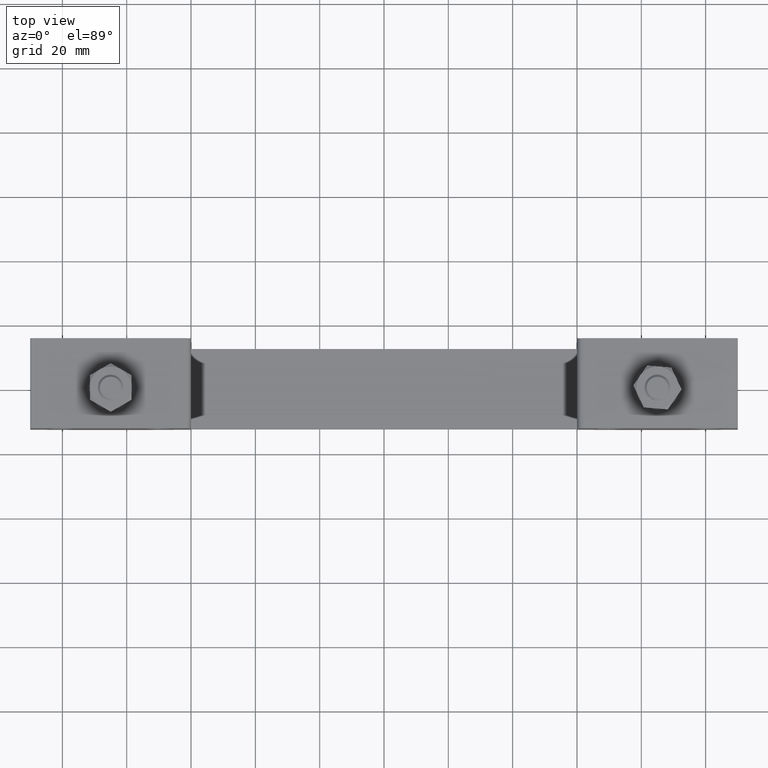
[diagram: clean part render]
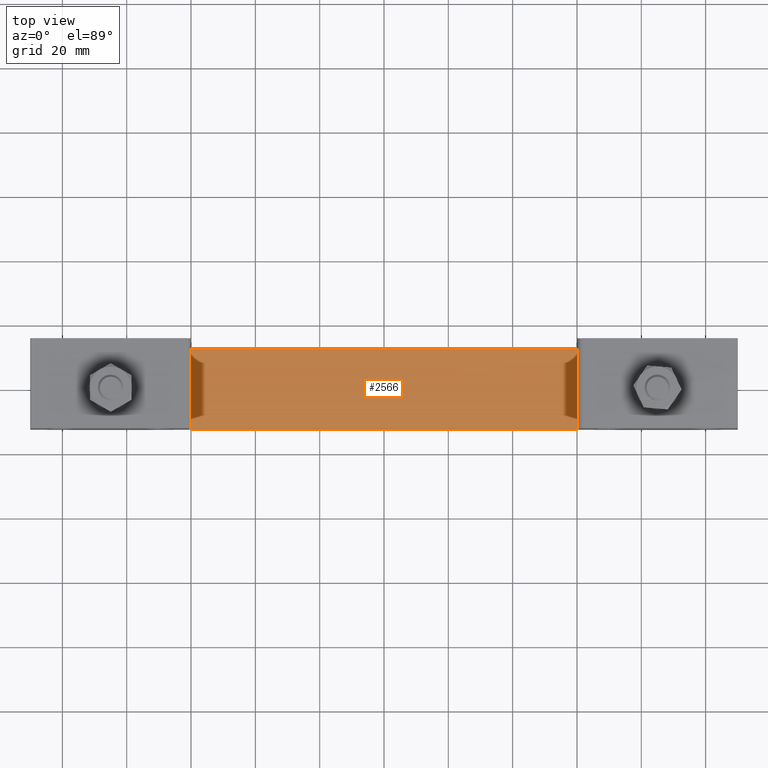
[diagram: same view with one face highlighted and labeled with its STEP entity id]
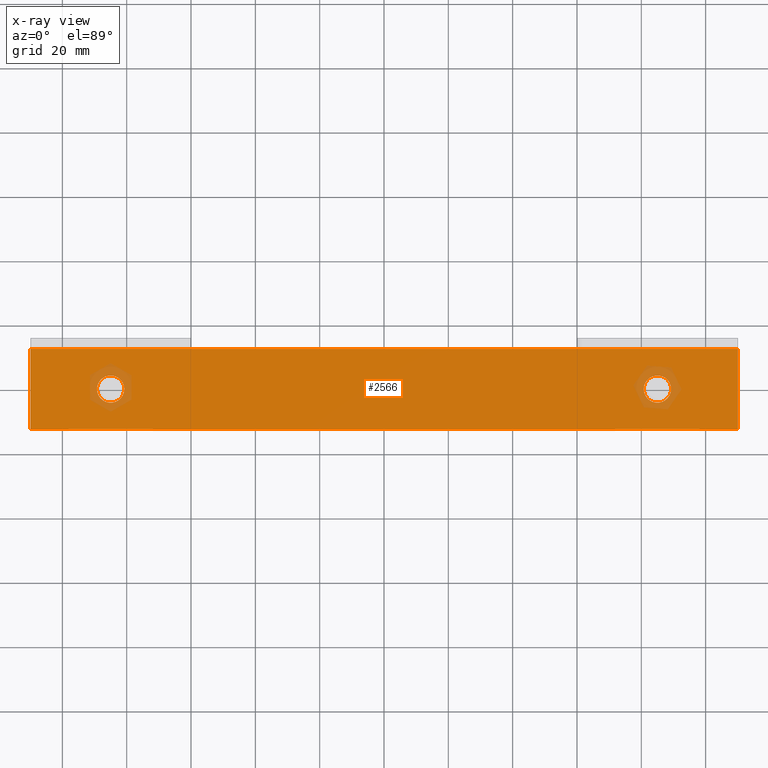
[diagram: x-ray of the same camera — body ghosted, the highlighted face saturated]
A machine part, top view. The second image highlights one B-rep face of the part: STEP entity #2566.
The next image is the same camera in x-ray: the body ghosted, the highlighted face saturated — about 3% of this face is hidden behind the body in this view.
In plain terms, the highlighted planar face has unit normal (0, 0, 1).
Its self-contained STEP definition (entity closure, byte-faithful):
#276 = CARTESIAN_POINT ( 'NONE',  ( -110.0000000000000000, 12.50000000000000000, 2.500000000000000000 ) ) ;
#447 = ORIENTED_EDGE ( 'NONE', *, *, #5876, .T. ) ;
#758 = VERTEX_POINT ( 'NONE', #12301 ) ;
#1220 = FACE_BOUND ( 'NONE', #13804, .T. ) ;
#1840 = CARTESIAN_POINT ( 'NONE',  ( 85.00000000000000000, 2.081830801498040100E-014, 2.500000000000000000 ) ) ;
#1891 = CARTESIAN_POINT ( 'NONE',  ( 85.00000000000000000, 2.081830801498040100E-014, 2.500000000000000000 ) ) ;
#1956 = CIRCLE ( 'NONE', #17843, 4.250000000000003600 ) ;
#2566 = ADVANCED_FACE ( 'NONE', ( #15632, #6289, #1220 ), #4263, .T. ) ;
#2609 = DIRECTION ( 'NONE',  ( 1.000000000000000000, 0.0000000000000000000, 0.0000000000000000000 ) ) ;
#3472 = AXIS2_PLACEMENT_3D ( 'NONE', #7457, #5706, #16699 ) ;
#3661 = EDGE_CURVE ( 'NONE', #758, #4984, #19776, .T. ) ;
#3840 = CARTESIAN_POINT ( 'NONE',  ( -85.00000000000000000, 0.0000000000000000000, 2.500000000000000000 ) ) ;
#4034 = CARTESIAN_POINT ( 'NONE',  ( -89.25000000000001400, 0.0000000000000000000, 2.500000000000000000 ) ) ;
#4150 = CARTESIAN_POINT ( 'NONE',  ( 89.25000000000001400, 2.133878290461802200E-014, 2.500000000000000000 ) ) ;
#4263 = PLANE ( 'NONE',  #3472 ) ;
#4358 = LINE ( 'NONE', #19144, #11217 ) ;
#4979 = CARTESIAN_POINT ( 'NONE',  ( 110.0000000000000000, 12.50000000000000000, 2.500000000000000000 ) ) ;
#4984 = VERTEX_POINT ( 'NONE', #4034 ) ;
#5334 = AXIS2_PLACEMENT_3D ( 'NONE', #3840, #14686, #16258 ) ;
#5490 = ORIENTED_EDGE ( 'NONE', *, *, #14936, .T. ) ;
#5554 = EDGE_LOOP ( 'NONE', ( #8891, #14065 ) ) ;
#5706 = DIRECTION ( 'NONE',  ( 0.0000000000000000000, 0.0000000000000000000, 1.000000000000000000 ) ) ;
#5876 = EDGE_CURVE ( 'NONE', #6790, #13504, #12562, .T. ) ;
#6289 = FACE_BOUND ( 'NONE', #5554, .T. ) ;
#6378 = EDGE_LOOP ( 'NONE', ( #12049, #5490, #447, #16935 ) ) ;
#6563 = DIRECTION ( 'NONE',  ( -1.000000000000000000, 0.0000000000000000000, 0.0000000000000000000 ) ) ;
#6790 = VERTEX_POINT ( 'NONE', #17505 ) ;
#7373 = VECTOR ( 'NONE', #9391, 1000.000000000000000 ) ;
#7457 = CARTESIAN_POINT ( 'NONE',  ( -110.0000000000000000, -12.50000000000000000, 2.500000000000000000 ) ) ;
#8122 = DIRECTION ( 'NONE',  ( 0.0000000000000000000, 0.0000000000000000000, -1.000000000000000000 ) ) ;
#8271 = EDGE_CURVE ( 'NONE', #13504, #8796, #4358, .T. ) ;
#8796 = VERTEX_POINT ( 'NONE', #9260 ) ;
#8891 = ORIENTED_EDGE ( 'NONE', *, *, #16434, .T. ) ;
#9260 = CARTESIAN_POINT ( 'NONE',  ( -110.0000000000000000, 12.50000000000000000, 2.500000000000000000 ) ) ;
#9391 = DIRECTION ( 'NONE',  ( 0.0000000000000000000, -1.000000000000000000, 0.0000000000000000000 ) ) ;
#9510 = DIRECTION ( 'NONE',  ( 0.0000000000000000000, 0.0000000000000000000, -1.000000000000000000 ) ) ;
#9570 = LINE ( 'NONE', #276, #7373 ) ;
#9685 = DIRECTION ( 'NONE',  ( -1.000000000000000000, 0.0000000000000000000, 0.0000000000000000000 ) ) ;
#9912 = EDGE_CURVE ( 'NONE', #8796, #14137, #9570, .T. ) ;
#10613 = DIRECTION ( 'NONE',  ( 0.0000000000000000000, 1.000000000000000000, 0.0000000000000000000 ) ) ;
#11101 = DIRECTION ( 'NONE',  ( -1.000000000000000000, 0.0000000000000000000, 0.0000000000000000000 ) ) ;
#11217 = VECTOR ( 'NONE', #17637, 1000.000000000000000 ) ;
#11273 = CIRCLE ( 'NONE', #13282, 4.250000000000003600 ) ;
#12049 = ORIENTED_EDGE ( 'NONE', *, *, #9912, .T. ) ;
#12075 = VECTOR ( 'NONE', #10613, 1000.000000000000000 ) ;
#12143 = CARTESIAN_POINT ( 'NONE',  ( 110.0000000000000000, 12.50000000000000000, 2.500000000000000000 ) ) ;
#12187 = CARTESIAN_POINT ( 'NONE',  ( -110.0000000000000000, -12.50000000000000000, 2.500000000000000000 ) ) ;
#12301 = CARTESIAN_POINT ( 'NONE',  ( -80.75000000000000000, 5.204748896376247700E-016, 2.500000000000000000 ) ) ;
#12562 = LINE ( 'NONE', #12143, #12075 ) ;
#12722 = CARTESIAN_POINT ( 'NONE',  ( -110.0000000000000000, -12.50000000000000000, 2.500000000000000000 ) ) ;
#12828 = CIRCLE ( 'NONE', #14957, 4.250000000000003600 ) ;
#13282 = AXIS2_PLACEMENT_3D ( 'NONE', #1840, #9510, #11101 ) ;
#13504 = VERTEX_POINT ( 'NONE', #4979 ) ;
#13773 = VECTOR ( 'NONE', #2609, 1000.000000000000000 ) ;
#13804 = EDGE_LOOP ( 'NONE', ( #16145, #15561 ) ) ;
#13857 = CARTESIAN_POINT ( 'NONE',  ( 80.75000000000000000, 2.081830801498040100E-014, 2.500000000000000000 ) ) ;
#14065 = ORIENTED_EDGE ( 'NONE', *, *, #14720, .T. ) ;
#14137 = VERTEX_POINT ( 'NONE', #12722 ) ;
#14320 = CARTESIAN_POINT ( 'NONE',  ( -85.00000000000000000, 0.0000000000000000000, 2.500000000000000000 ) ) ;
#14686 = DIRECTION ( 'NONE',  ( 0.0000000000000000000, 0.0000000000000000000, -1.000000000000000000 ) ) ;
#14720 = EDGE_CURVE ( 'NONE', #15284, #19051, #12828, .T. ) ;
#14936 = EDGE_CURVE ( 'NONE', #14137, #6790, #16741, .T. ) ;
#14957 = AXIS2_PLACEMENT_3D ( 'NONE', #1891, #15976, #6563 ) ;
#15105 = EDGE_CURVE ( 'NONE', #4984, #758, #1956, .T. ) ;
#15284 = VERTEX_POINT ( 'NONE', #4150 ) ;
#15561 = ORIENTED_EDGE ( 'NONE', *, *, #3661, .T. ) ;
#15632 = FACE_OUTER_BOUND ( 'NONE', #6378, .T. ) ;
#15976 = DIRECTION ( 'NONE',  ( 0.0000000000000000000, 0.0000000000000000000, -1.000000000000000000 ) ) ;
#16145 = ORIENTED_EDGE ( 'NONE', *, *, #15105, .T. ) ;
#16258 = DIRECTION ( 'NONE',  ( -1.000000000000000000, 0.0000000000000000000, 0.0000000000000000000 ) ) ;
#16434 = EDGE_CURVE ( 'NONE', #19051, #15284, #11273, .T. ) ;
#16699 = DIRECTION ( 'NONE',  ( 1.000000000000000000, 0.0000000000000000000, 0.0000000000000000000 ) ) ;
#16741 = LINE ( 'NONE', #12187, #13773 ) ;
#16935 = ORIENTED_EDGE ( 'NONE', *, *, #8271, .T. ) ;
#17505 = CARTESIAN_POINT ( 'NONE',  ( 110.0000000000000000, -12.50000000000000000, 2.500000000000000000 ) ) ;
#17637 = DIRECTION ( 'NONE',  ( -1.000000000000000000, 0.0000000000000000000, 0.0000000000000000000 ) ) ;
#17843 = AXIS2_PLACEMENT_3D ( 'NONE', #14320, #8122, #9685 ) ;
#19051 = VERTEX_POINT ( 'NONE', #13857 ) ;
#19144 = CARTESIAN_POINT ( 'NONE',  ( -110.0000000000000000, 12.50000000000000000, 2.500000000000000000 ) ) ;
#19776 = CIRCLE ( 'NONE', #5334, 4.250000000000003600 ) ;